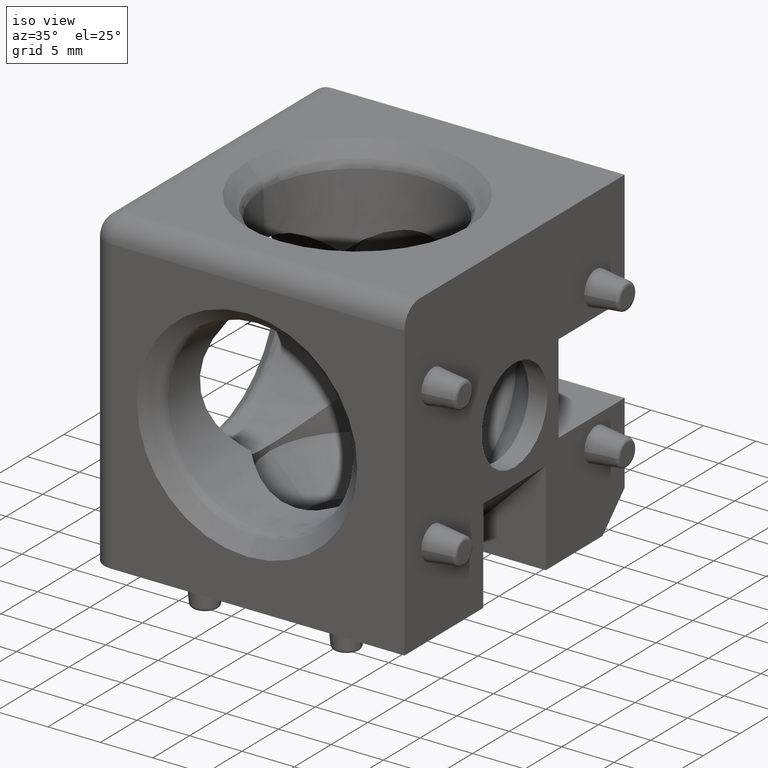
[diagram: clean part render]
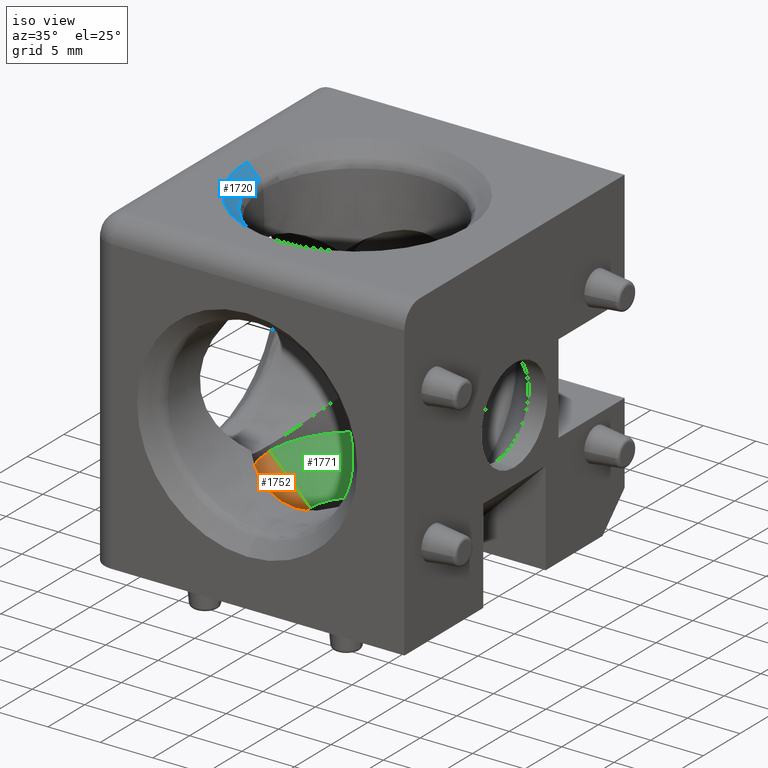
[diagram: same view with three faces highlighted in distinct colors, each labeled with its STEP entity id]
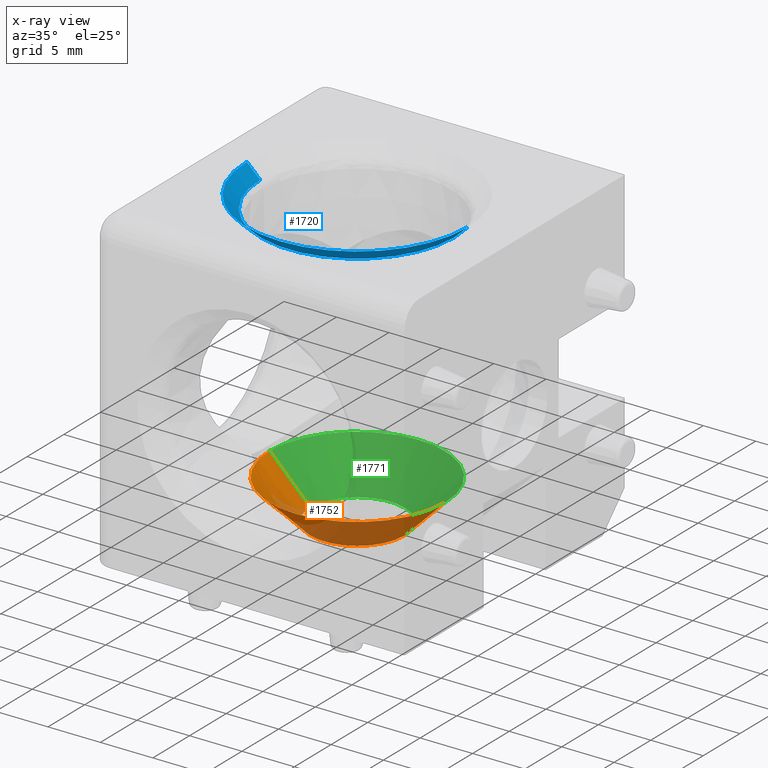
[diagram: x-ray of the same camera — body ghosted, the three highlighted faces saturated]
A machine part, iso view with three faces highlighted in distinct colors.
The next image is the same camera in x-ray (body ghosted, the three faces saturated) — at least one of them is partly hidden behind the body in this view.
Their STEP definitions:

[orange] entity #1752 — the highlighted conical surface has half-angle 45 deg.
#131=LINE('',#3127,#230);
#132=LINE('',#3130,#231);
#230=VECTOR('',#2407,5.46269052736144);
#231=VECTOR('',#2410,5.46269052736144);
#308=CONICAL_SURFACE('',#1967,8.36270551542077,44.9999999999997);
#372=FACE_OUTER_BOUND('',#488,.T.);
#488=EDGE_LOOP('',(#1303,#1304,#1305,#1306));
#684=CIRCLE('',#1968,4.5);
#685=CIRCLE('',#1969,8.36270551542077);
#843=VERTEX_POINT('',#3123);
#844=VERTEX_POINT('',#3124);
#845=VERTEX_POINT('',#3126);
#846=VERTEX_POINT('',#3128);
#1035=EDGE_CURVE('',#843,#844,#684,.T.);
#1036=EDGE_CURVE('',#844,#845,#131,.T.);
#1037=EDGE_CURVE('',#846,#845,#685,.T.);
#1038=EDGE_CURVE('',#843,#846,#132,.T.);
#1303=ORIENTED_EDGE('',*,*,#1035,.T.);
#1304=ORIENTED_EDGE('',*,*,#1036,.T.);
#1305=ORIENTED_EDGE('',*,*,#1037,.F.);
#1306=ORIENTED_EDGE('',*,*,#1038,.F.);
#1752=ADVANCED_FACE('',(#372),#308,.F.);
#1967=AXIS2_PLACEMENT_3D('',#3122,#2403,#2404);
#1968=AXIS2_PLACEMENT_3D('',#3125,#2405,#2406);
#1969=AXIS2_PLACEMENT_3D('',#3129,#2408,#2409);
#2403=DIRECTION('center_axis',(2.0743567650182E-16,0.,1.));
#2404=DIRECTION('ref_axis',(1.,0.,-2.0743567650182E-16));
#2405=DIRECTION('center_axis',(0.,0.,-1.));
#2406=DIRECTION('ref_axis',(-1.,0.,0.));
#2407=DIRECTION('',(-0.707106781186544,8.65956056235489E-17,0.707106781186551));
#2408=DIRECTION('center_axis',(-2.0743567650182E-16,0.,-1.));
#2409=DIRECTION('ref_axis',(-1.,0.,2.0743567650182E-16));
#2410=DIRECTION('',(0.707106781186544,0.,0.707106781186551));
#3122=CARTESIAN_POINT('Origin',(7.23029332765998E-16,0.,-9.33729448457919));
#3123=CARTESIAN_POINT('',(4.5,5.51091059616309E-16,-13.2));
#3124=CARTESIAN_POINT('',(-4.5,0.,-13.2));
#3125=CARTESIAN_POINT('Origin',(2.61459066039272E-16,0.,-13.2));
#3126=CARTESIAN_POINT('',(-8.36270551542077,1.02955866611872E-15,-9.33729448457919));
#3127=CARTESIAN_POINT('',(-8.36270551542077,1.0241360541672E-15,-9.33729448457919));
#3128=CARTESIAN_POINT('',(8.36270551542077,0.,-9.33729448457919));
#3129=CARTESIAN_POINT('Origin',(7.23029332765998E-16,0.,-9.33729448457919));
#3130=CARTESIAN_POINT('',(8.36270551542077,0.,-9.33729448457919));

[blue] entity #1720 — the highlighted conical surface has half-angle 46.5 deg.
#91=LINE('',#2755,#190);
#92=LINE('',#2758,#191);
#190=VECTOR('',#2135,1.76414921810539);
#191=VECTOR('',#2138,1.76414921810539);
#289=CONICAL_SURFACE('',#1851,10.5408631092643,46.4999999999995);
#340=FACE_OUTER_BOUND('',#456,.T.);
#456=EDGE_LOOP('',(#1170,#1171,#1172,#1173));
#600=CIRCLE('',#1852,9.26119447980934);
#601=CIRCLE('',#1853,10.5408631092643);
#739=VERTEX_POINT('',#2736);
#740=VERTEX_POINT('',#2738);
#746=VERTEX_POINT('',#2754);
#747=VERTEX_POINT('',#2756);
#905=EDGE_CURVE('',#739,#740,#600,.T.);
#906=EDGE_CURVE('',#740,#746,#91,.T.);
#907=EDGE_CURVE('',#747,#746,#601,.T.);
#908=EDGE_CURVE('',#739,#747,#92,.T.);
#1170=ORIENTED_EDGE('',*,*,#905,.T.);
#1171=ORIENTED_EDGE('',*,*,#906,.T.);
#1172=ORIENTED_EDGE('',*,*,#907,.F.);
#1173=ORIENTED_EDGE('',*,*,#908,.F.);
#1720=ADVANCED_FACE('',(#340),#289,.F.);
#1851=AXIS2_PLACEMENT_3D('',#2752,#2131,#2132);
#1852=AXIS2_PLACEMENT_3D('',#2753,#2133,#2134);
#1853=AXIS2_PLACEMENT_3D('',#2757,#2136,#2137);
#2131=DIRECTION('center_axis',(0.,0.,1.));
#2132=DIRECTION('ref_axis',(1.,0.,0.));
#2133=DIRECTION('center_axis',(0.,0.,-1.));
#2134=DIRECTION('ref_axis',(1.,0.,0.));
#2135=DIRECTION('',(-0.725374371012281,8.88327401643714E-17,0.688354575693761));
#2136=DIRECTION('center_axis',(0.,0.,-1.));
#2137=DIRECTION('ref_axis',(1.,0.,0.));
#2138=DIRECTION('',(0.725374371012281,0.,0.688354575693761));
#2736=CARTESIAN_POINT('',(9.26119447980934,0.,13.7856398135106));
#2738=CARTESIAN_POINT('',(-9.26119447980934,1.21252632214953E-15,13.7856398135106));
#2752=CARTESIAN_POINT('Origin',(0.,0.,15.));
#2753=CARTESIAN_POINT('Origin',(0.,0.,13.7856398135106));
#2754=CARTESIAN_POINT('',(-10.5408631092643,1.2908834267011E-15,15.));
#2755=CARTESIAN_POINT('',(-10.5408631092643,1.2908834267011E-15,15.));
#2756=CARTESIAN_POINT('',(10.5408631092643,0.,15.));
#2757=CARTESIAN_POINT('Origin',(0.,0.,15.));
#2758=CARTESIAN_POINT('',(10.5408631092643,0.,15.));

[green] entity #1771 — the highlighted conical surface has half-angle 45 deg.
#131=LINE('',#3127,#230);
#132=LINE('',#3130,#231);
#230=VECTOR('',#2407,5.46269052736144);
#231=VECTOR('',#2410,5.46269052736144);
#317=CONICAL_SURFACE('',#2017,8.36270551542077,44.9999999999997);
#391=FACE_OUTER_BOUND('',#525,.T.);
#525=EDGE_LOOP('',(#1465,#1466,#1467,#1468));
#708=CIRCLE('',#2002,8.36270551542077);
#712=CIRCLE('',#2012,4.5);
#843=VERTEX_POINT('',#3123);
#844=VERTEX_POINT('',#3124);
#845=VERTEX_POINT('',#3126);
#846=VERTEX_POINT('',#3128);
#1036=EDGE_CURVE('',#844,#845,#131,.T.);
#1038=EDGE_CURVE('',#843,#846,#132,.T.);
#1113=EDGE_CURVE('',#845,#846,#708,.T.);
#1126=EDGE_CURVE('',#844,#843,#712,.T.);
#1465=ORIENTED_EDGE('',*,*,#1036,.F.);
#1466=ORIENTED_EDGE('',*,*,#1126,.T.);
#1467=ORIENTED_EDGE('',*,*,#1038,.T.);
#1468=ORIENTED_EDGE('',*,*,#1113,.F.);
#1771=ADVANCED_FACE('',(#391),#317,.F.);
#2002=AXIS2_PLACEMENT_3D('',#3364,#2520,#2521);
#2012=AXIS2_PLACEMENT_3D('',#3501,#2542,#2543);
#2017=AXIS2_PLACEMENT_3D('',#3512,#2556,#2557);
#2407=DIRECTION('',(-0.707106781186544,8.65956056235489E-17,0.707106781186551));
#2410=DIRECTION('',(0.707106781186544,0.,0.707106781186551));
#2520=DIRECTION('center_axis',(-2.0743567650182E-16,0.,-1.));
#2521=DIRECTION('ref_axis',(-1.,0.,2.0743567650182E-16));
#2542=DIRECTION('center_axis',(0.,0.,-1.));
#2543=DIRECTION('ref_axis',(-1.,0.,0.));
#2556=DIRECTION('center_axis',(2.0743567650182E-16,0.,1.));
#2557=DIRECTION('ref_axis',(1.,0.,-2.0743567650182E-16));
#3123=CARTESIAN_POINT('',(4.5,5.51091059616309E-16,-13.2));
#3124=CARTESIAN_POINT('',(-4.5,0.,-13.2));
#3126=CARTESIAN_POINT('',(-8.36270551542077,1.02955866611872E-15,-9.33729448457919));
#3127=CARTESIAN_POINT('',(-8.36270551542077,1.0241360541672E-15,-9.33729448457919));
#3128=CARTESIAN_POINT('',(8.36270551542077,0.,-9.33729448457919));
#3130=CARTESIAN_POINT('',(8.36270551542077,0.,-9.33729448457919));
#3364=CARTESIAN_POINT('Origin',(7.23029332765998E-16,0.,-9.33729448457919));
#3501=CARTESIAN_POINT('Origin',(2.61459066039272E-16,0.,-13.2));
#3512=CARTESIAN_POINT('Origin',(7.23029332765998E-16,0.,-9.33729448457919));